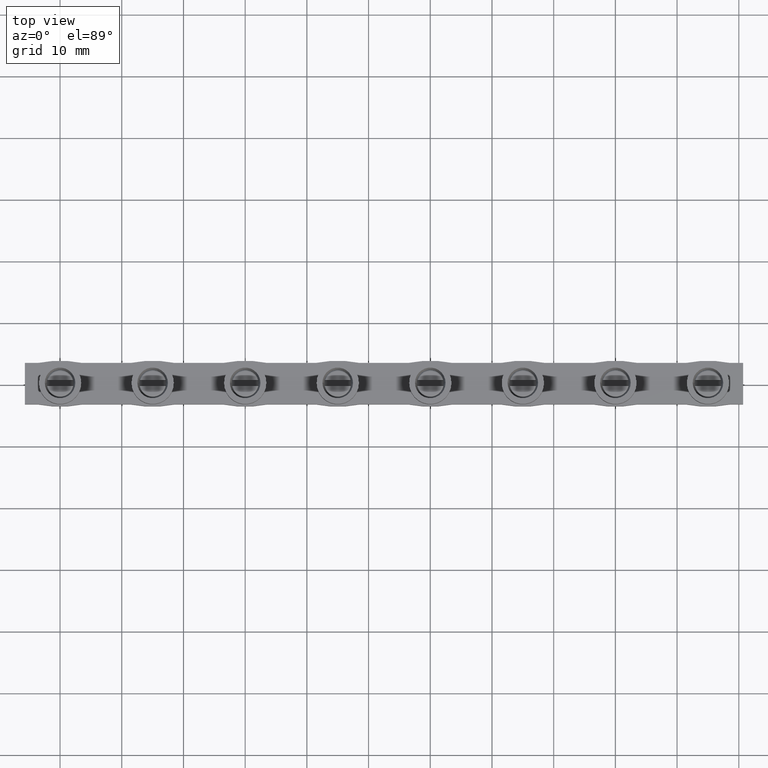
[diagram: clean part render]
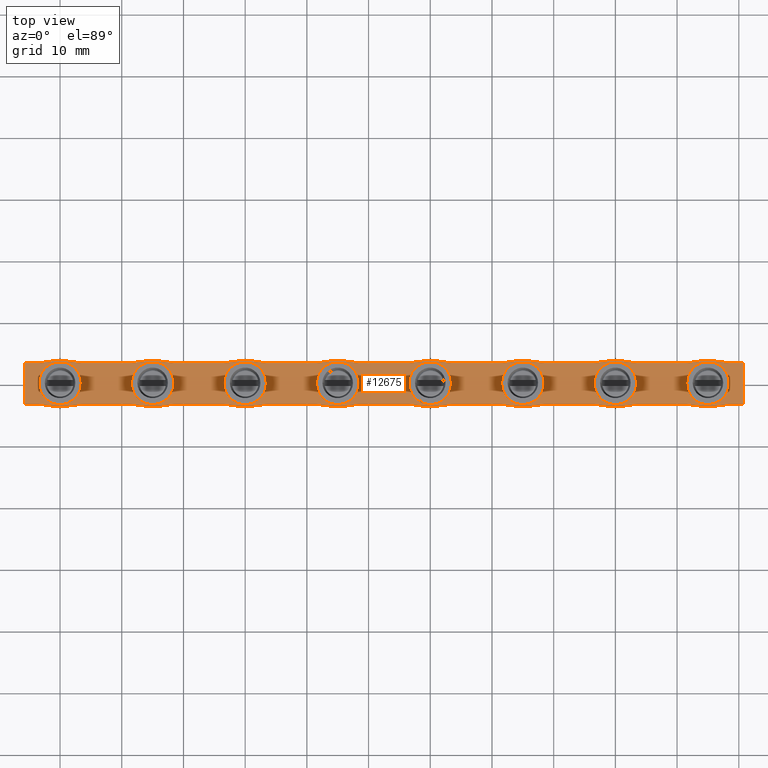
[diagram: same view with one face highlighted and labeled with its STEP entity id]
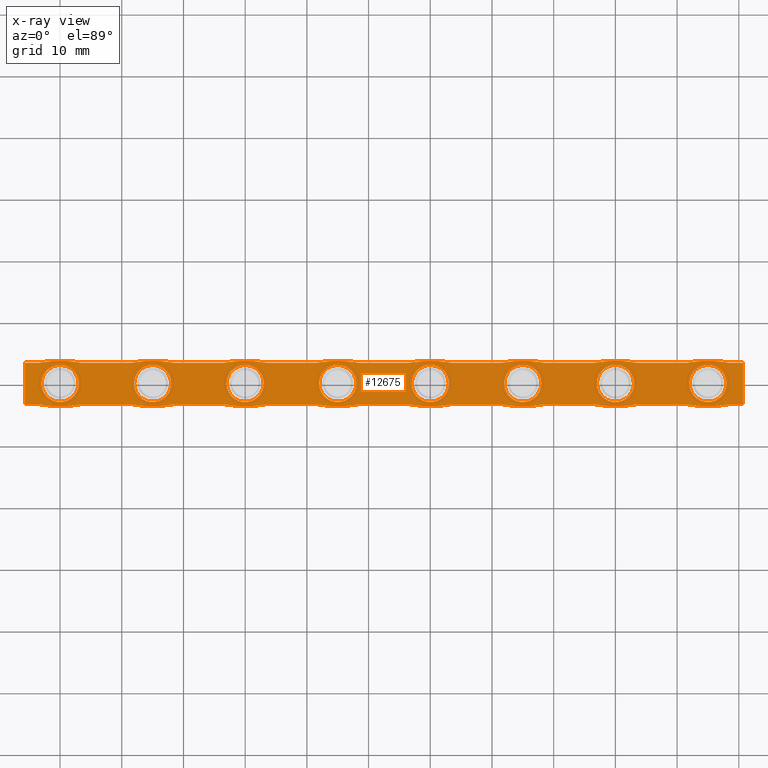
[diagram: x-ray of the same camera — body ghosted, the highlighted face saturated]
A machine part, top view. The second image highlights one B-rep face of the part: STEP entity #12675.
The next image is the same camera in x-ray: the body ghosted, the highlighted face saturated — about 0% of this face is hidden behind the body in this view.
In plain terms, the highlighted planar face has unit normal (0, 0, -1).
Its self-contained STEP definition (entity closure, byte-faithful):
#195 = EDGE_CURVE ( 'NONE', #2505, #2539, #10050, .T. ) ;
#201 = EDGE_CURVE ( 'NONE', #1992, #1972, #10030, .T. ) ;
#267 = EDGE_CURVE ( 'NONE', #1974, #2014, #10154, .T. ) ;
#313 = EDGE_CURVE ( 'NONE', #2031, #1994, #10218, .T. ) ;
#344 = EDGE_CURVE ( 'NONE', #1946, #2055, #10246, .T. ) ;
#427 = EDGE_CURVE ( 'NONE', #2116, #2133, #10355, .T. ) ;
#435 = EDGE_CURVE ( 'NONE', #2118, #2062, #10364, .T. ) ;
#466 = EDGE_CURVE ( 'NONE', #2190, #2192, #14548, .T. ) ;
#467 = EDGE_CURVE ( 'NONE', #2206, #2228, #14590, .T. ) ;
#468 = EDGE_CURVE ( 'NONE', #2228, #2190, #10419, .T. ) ;
#473 = EDGE_CURVE ( 'NONE', #2218, #2206, #10422, .T. ) ;
#474 = EDGE_CURVE ( 'NONE', #2197, #2210, #14605, .T. ) ;
#495 = EDGE_CURVE ( 'NONE', #2224, #2199, #10440, .T. ) ;
#497 = EDGE_CURVE ( 'NONE', #2207, #2237, #10465, .T. ) ;
#499 = EDGE_CURVE ( 'NONE', #2193, #2218, #14667, .T. ) ;
#506 = EDGE_CURVE ( 'NONE', #2110, #2152, #10479, .T. ) ;
#1422 = LINE ( 'NONE', #1448, #12172 ) ;
#1424 = DIRECTION ( 'NONE',  ( -1.000000000000000000, -1.245679091791856200E-016, -0.0000000000000000000 ) ) ;
#1426 = LINE ( 'NONE', #1456, #12141 ) ;
#1427 = DIRECTION ( 'NONE',  ( -0.0000000000000000000, -0.0000000000000000000, -1.000000000000000000 ) ) ;
#1429 = LINE ( 'NONE', #1449, #12126 ) ;
#1430 = LINE ( 'NONE', #1435, #12130 ) ;
#1431 = LINE ( 'NONE', #1451, #12158 ) ;
#1432 = DIRECTION ( 'NONE',  ( 1.000000000000000000, 1.245679091791855700E-016, -0.0000000000000000000 ) ) ;
#1435 = CARTESIAN_POINT ( 'NONE',  ( 58.85000000000163600, -3.349999999999673700, -0.9000000000000014700 ) ) ;
#1436 = CARTESIAN_POINT ( 'NONE',  ( 30.00000000000164500, 13.97500000000485100, -0.9000000000000014700 ) ) ;
#1438 = DIRECTION ( 'NONE',  ( 1.000000000000000000, 1.245679091791856200E-016, -0.0000000000000000000 ) ) ;
#1439 = DIRECTION ( 'NONE',  ( 4.822322090079283200E-017, -1.000000000000000000, 0.0000000000000000000 ) ) ;
#1443 = CARTESIAN_POINT ( 'NONE',  ( 30.00000000000165200, -13.97500000000472700, -0.9000000000000014700 ) ) ;
#1444 = DIRECTION ( 'NONE',  ( 1.000000000000000000, 2.944367993170586000E-016, 0.0000000000000000000 ) ) ;
#1445 = DIRECTION ( 'NONE',  ( -1.000000000000000000, -1.245679091791855700E-016, -0.0000000000000000000 ) ) ;
#1448 = CARTESIAN_POINT ( 'NONE',  ( 16.15000000000000900, -3.349999999999913900, -0.9000000000000014700 ) ) ;
#1449 = CARTESIAN_POINT ( 'NONE',  ( 73.85000000000164300, -3.349999999999613300, -0.9000000000000014700 ) ) ;
#1450 = DIRECTION ( 'NONE',  ( -1.000000000000000000, -1.245679091791855700E-016, -0.0000000000000000000 ) ) ;
#1451 = CARTESIAN_POINT ( 'NONE',  ( 31.15000000000001300, 3.350000000000084500, -0.9000000000000014700 ) ) ;
#1453 = CARTESIAN_POINT ( 'NONE',  ( 110.7000000000016500, -3.349999999999549300, -0.9000000000000014700 ) ) ;
#1455 = DIRECTION ( 'NONE',  ( -1.000000000000000000, -2.944367993170586500E-016, 0.0000000000000000000 ) ) ;
#1456 = CARTESIAN_POINT ( 'NONE',  ( 43.85000000000163600, 3.350000000000267000, -0.9000000000000014700 ) ) ;
#1462 = LINE ( 'NONE', #1453, #12146 ) ;
#1463 = CARTESIAN_POINT ( 'NONE',  ( 105.0000000000016500, 13.97500000000515300, -0.9000000000000014700 ) ) ;
#1464 = DIRECTION ( 'NONE',  ( -1.000000000000000000, -2.944367993170587500E-016, 0.0000000000000000000 ) ) ;
#1465 = DIRECTION ( 'NONE',  ( -0.0000000000000000000, -0.0000000000000000000, -1.000000000000000000 ) ) ;
#1466 = DIRECTION ( 'NONE',  ( -0.0000000000000000000, -0.0000000000000000000, -1.000000000000000000 ) ) ;
#1468 = LINE ( 'NONE', #1477, #12161 ) ;
#1473 = DIRECTION ( 'NONE',  ( 1.000000000000000000, 2.944367993170585000E-016, 0.0000000000000000000 ) ) ;
#1476 = CARTESIAN_POINT ( 'NONE',  ( 105.0000000000016500, -13.97500000000442500, -0.9000000000000014700 ) ) ;
#1477 = CARTESIAN_POINT ( 'NONE',  ( 46.15000000000001300, -3.349999999999856600, -0.9000000000000014700 ) ) ;
#1479 = CARTESIAN_POINT ( 'NONE',  ( 15.00000000000164500, 13.97500000000479000, -0.9000000000000014700 ) ) ;
#1481 = DIRECTION ( 'NONE',  ( -1.000000000000000000, -2.944367993170586500E-016, 0.0000000000000000000 ) ) ;
#1487 = DIRECTION ( 'NONE',  ( -0.0000000000000000000, -0.0000000000000000000, -1.000000000000000000 ) ) ;
#1490 = CARTESIAN_POINT ( 'NONE',  ( 45.00000000000164800, -13.97500000000466600, -0.9000000000000014700 ) ) ;
#1491 = DIRECTION ( 'NONE',  ( -0.0000000000000000000, -0.0000000000000000000, -1.000000000000000000 ) ) ;
#1499 = DIRECTION ( 'NONE',  ( 1.000000000000000000, 1.245679091791856200E-016, -0.0000000000000000000 ) ) ;
#1503 = DIRECTION ( 'NONE',  ( -0.0000000000000000000, -0.0000000000000000000, -1.000000000000000000 ) ) ;
#1507 = DIRECTION ( 'NONE',  ( 1.000000000000000000, 2.944367993170585000E-016, 0.0000000000000000000 ) ) ;
#1510 = DIRECTION ( 'NONE',  ( -1.000000000000000000, -1.245679091791856200E-016, -0.0000000000000000000 ) ) ;
#1515 = CARTESIAN_POINT ( 'NONE',  ( 31.15000000000001300, -3.349999999999917500, -0.9000000000000014700 ) ) ;
#1520 = DIRECTION ( 'NONE',  ( 1.000000000000000000, 1.245679091791855700E-016, -0.0000000000000000000 ) ) ;
#1521 = LINE ( 'NONE', #1541, #12133 ) ;
#1522 = DIRECTION ( 'NONE',  ( 1.000000000000000000, 1.245679091791856200E-016, -0.0000000000000000000 ) ) ;
#1523 = DIRECTION ( 'NONE',  ( 1.000000000000000000, 2.944367993170587500E-016, 0.0000000000000000000 ) ) ;
#1526 = LINE ( 'NONE', #1515, #12152 ) ;
#1528 = CARTESIAN_POINT ( 'NONE',  ( 13.85000000000164300, 3.350000000000145800, -0.9000000000000014700 ) ) ;
#1529 = CARTESIAN_POINT ( 'NONE',  ( 90.00000000000164800, -13.97500000000448300, -0.9000000000000014700 ) ) ;
#1535 = DIRECTION ( 'NONE',  ( 1.000000000000000000, 1.245679091791855700E-016, -0.0000000000000000000 ) ) ;
#1538 = LINE ( 'NONE', #1544, #12119 ) ;
#1541 = CARTESIAN_POINT ( 'NONE',  ( 16.15000000000000900, 3.350000000000087100, -0.9000000000000014700 ) ) ;
#1543 = LINE ( 'NONE', #1547, #12128 ) ;
#1544 = CARTESIAN_POINT ( 'NONE',  ( 46.15000000000001300, 3.350000000000145300, -0.9000000000000014700 ) ) ;
#1545 = DIRECTION ( 'NONE',  ( -0.0000000000000000000, -0.0000000000000000000, -1.000000000000000000 ) ) ;
#1547 = CARTESIAN_POINT ( 'NONE',  ( 28.85000000000164300, 3.350000000000206100, -0.9000000000000014700 ) ) ;
#1551 = DIRECTION ( 'NONE',  ( -1.000000000000000000, -1.245679091791856200E-016, -0.0000000000000000000 ) ) ;
#1552 = LINE ( 'NONE', #1528, #12151 ) ;
#1556 = CARTESIAN_POINT ( 'NONE',  ( 15.00000000000165000, 1.868518637687989600E-015, -0.9000000000000014700 ) ) ;
#1564 = DIRECTION ( 'NONE',  ( 0.0000000000000000000, 0.0000000000000000000, -1.000000000000000000 ) ) ;
#1580 = DIRECTION ( 'NONE',  ( 1.000000000000000000, 2.491358183583712400E-016, 0.0000000000000000000 ) ) ;
#1604 = DIRECTION ( 'NONE',  ( 1.000000000000000000, 2.491358183583654200E-016, 0.0000000000000000000 ) ) ;
#1619 = DIRECTION ( 'NONE',  ( 0.0000000000000000000, 0.0000000000000000000, -1.000000000000000000 ) ) ;
#1637 = CARTESIAN_POINT ( 'NONE',  ( 90.00000000000164800, 3.046974012975282300E-013, -0.9000000000000014700 ) ) ;
#1664 = DIRECTION ( 'NONE',  ( 0.0000000000000000000, 0.0000000000000000000, -1.000000000000000000 ) ) ;
#1677 = CARTESIAN_POINT ( 'NONE',  ( 45.00000000000164800, 1.230000717016241000E-013, -0.9000000000000014700 ) ) ;
#1678 = DIRECTION ( 'NONE',  ( 1.000000000000000000, 2.491358183583736600E-016, 0.0000000000000000000 ) ) ;
#1710 = DIRECTION ( 'NONE',  ( 1.000000000000000000, 2.491358183583695200E-016, 0.0000000000000000000 ) ) ;
#1720 = CARTESIAN_POINT ( 'NONE',  ( 30.00000000000165200, 6.243429516965604400E-014, -0.9000000000000014700 ) ) ;
#1730 = DIRECTION ( 'NONE',  ( 0.0000000000000000000, 0.0000000000000000000, -1.000000000000000000 ) ) ;
#1772 = DIRECTION ( 'NONE',  ( 1.000000000000000000, 2.491358183583654200E-016, 0.0000000000000000000 ) ) ;
#1781 = CARTESIAN_POINT ( 'NONE',  ( 105.0000000000016500, 3.652631778294963100E-013, -0.9000000000000014700 ) ) ;
#1797 = DIRECTION ( 'NONE',  ( 0.0000000000000000000, 0.0000000000000000000, -1.000000000000000000 ) ) ;
#1946 = VERTEX_POINT ( 'NONE', #8403 ) ;
#1972 = VERTEX_POINT ( 'NONE', #8482 ) ;
#1974 = VERTEX_POINT ( 'NONE', #8457 ) ;
#1992 = VERTEX_POINT ( 'NONE', #8442 ) ;
#1994 = VERTEX_POINT ( 'NONE', #8443 ) ;
#2014 = VERTEX_POINT ( 'NONE', #8508 ) ;
#2031 = VERTEX_POINT ( 'NONE', #8515 ) ;
#2055 = VERTEX_POINT ( 'NONE', #8516 ) ;
#2062 = VERTEX_POINT ( 'NONE', #8519 ) ;
#2110 = VERTEX_POINT ( 'NONE', #8586 ) ;
#2116 = VERTEX_POINT ( 'NONE', #8593 ) ;
#2118 = VERTEX_POINT ( 'NONE', #8597 ) ;
#2121 = VERTEX_POINT ( 'NONE', #8599 ) ;
#2133 = VERTEX_POINT ( 'NONE', #8650 ) ;
#2152 = VERTEX_POINT ( 'NONE', #8651 ) ;
#2188 = VERTEX_POINT ( 'NONE', #8702 ) ;
#2190 = VERTEX_POINT ( 'NONE', #8685 ) ;
#2192 = VERTEX_POINT ( 'NONE', #8714 ) ;
#2193 = VERTEX_POINT ( 'NONE', #8709 ) ;
#2194 = VERTEX_POINT ( 'NONE', #8700 ) ;
#2196 = VERTEX_POINT ( 'NONE', #8678 ) ;
#2197 = VERTEX_POINT ( 'NONE', #8710 ) ;
#2198 = VERTEX_POINT ( 'NONE', #8711 ) ;
#2199 = VERTEX_POINT ( 'NONE', #8669 ) ;
#2200 = VERTEX_POINT ( 'NONE', #8696 ) ;
#2204 = VERTEX_POINT ( 'NONE', #8682 ) ;
#2206 = VERTEX_POINT ( 'NONE', #8686 ) ;
#2207 = VERTEX_POINT ( 'NONE', #8687 ) ;
#2208 = VERTEX_POINT ( 'NONE', #8701 ) ;
#2210 = VERTEX_POINT ( 'NONE', #8672 ) ;
#2212 = VERTEX_POINT ( 'NONE', #8673 ) ;
#2215 = VERTEX_POINT ( 'NONE', #8703 ) ;
#2218 = VERTEX_POINT ( 'NONE', #8704 ) ;
#2220 = VERTEX_POINT ( 'NONE', #8716 ) ;
#2221 = VERTEX_POINT ( 'NONE', #8707 ) ;
#2222 = VERTEX_POINT ( 'NONE', #8663 ) ;
#2223 = VERTEX_POINT ( 'NONE', #8692 ) ;
#2224 = VERTEX_POINT ( 'NONE', #8664 ) ;
#2225 = VERTEX_POINT ( 'NONE', #8693 ) ;
#2226 = VERTEX_POINT ( 'NONE', #8694 ) ;
#2227 = VERTEX_POINT ( 'NONE', #8755 ) ;
#2228 = VERTEX_POINT ( 'NONE', #8761 ) ;
#2230 = VERTEX_POINT ( 'NONE', #8741 ) ;
#2232 = VERTEX_POINT ( 'NONE', #8726 ) ;
#2235 = VERTEX_POINT ( 'NONE', #8782 ) ;
#2237 = VERTEX_POINT ( 'NONE', #8771 ) ;
#2239 = VERTEX_POINT ( 'NONE', #8747 ) ;
#2240 = VERTEX_POINT ( 'NONE', #8739 ) ;
#2242 = VERTEX_POINT ( 'NONE', #8756 ) ;
#2243 = VERTEX_POINT ( 'NONE', #8732 ) ;
#2505 = VERTEX_POINT ( 'NONE', #9007 ) ;
#2539 = VERTEX_POINT ( 'NONE', #9047 ) ;
#2747 = EDGE_LOOP ( 'NONE', ( #4884, #4940 ) ) ;
#2754 = EDGE_LOOP ( 'NONE', ( #4906, #4868 ) ) ;
#2755 = EDGE_LOOP ( 'NONE', ( #4818, #4891, #4898, #4824, #4912, #4886, #4845, #4806, #4903, #4802, #4814, #4889, #4869, #4825, #4874, #4828, #4855, #4870, #4902, #4827, #4899, #4935, #4925, #4851, #4950, #4941, #4961, #4976, #4964, #4885, #4948, #4966, #4962, #4967, #4892, #4878 ) ) ;
#2758 = EDGE_LOOP ( 'NONE', ( #4881, #4854 ) ) ;
#2768 = EDGE_LOOP ( 'NONE', ( #4850, #4953 ) ) ;
#2769 = EDGE_LOOP ( 'NONE', ( #4856, #4859 ) ) ;
#2783 = EDGE_LOOP ( 'NONE', ( #4957, #4928 ) ) ;
#2796 = EDGE_LOOP ( 'NONE', ( #4904, #4861 ) ) ;
#2798 = EDGE_LOOP ( 'NONE', ( #4946, #4853 ) ) ;
#3959 = CARTESIAN_POINT ( 'NONE',  ( 90.00000000000164800, 3.046974012975282300E-013, -0.9000000000000014700 ) ) ;
#3964 = DIRECTION ( 'NONE',  ( 0.0000000000000000000, 0.0000000000000000000, -1.000000000000000000 ) ) ;
#3972 = DIRECTION ( 'NONE',  ( 1.000000000000000000, 2.491358183583654200E-016, 0.0000000000000000000 ) ) ;
#3981 = DIRECTION ( 'NONE',  ( 1.000000000000000000, 2.491358183583654200E-016, 0.0000000000000000000 ) ) ;
#3987 = CARTESIAN_POINT ( 'NONE',  ( 105.0000000000016500, 3.652631778294963100E-013, -0.9000000000000014700 ) ) ;
#3989 = DIRECTION ( 'NONE',  ( 0.0000000000000000000, 0.0000000000000000000, -1.000000000000000000 ) ) ;
#4124 = DIRECTION ( 'NONE',  ( 0.0000000000000000000, 0.0000000000000000000, -1.000000000000000000 ) ) ;
#4166 = CARTESIAN_POINT ( 'NONE',  ( 60.00000000000164800, 1.835658482335921500E-013, -0.9000000000000014700 ) ) ;
#4802 = ORIENTED_EDGE ( 'NONE', *, *, #12973, .F. ) ;
#4806 = ORIENTED_EDGE ( 'NONE', *, *, #12959, .F. ) ;
#4814 = ORIENTED_EDGE ( 'NONE', *, *, #12967, .F. ) ;
#4818 = ORIENTED_EDGE ( 'NONE', *, *, #12974, .F. ) ;
#4824 = ORIENTED_EDGE ( 'NONE', *, *, #474, .F. ) ;
#4825 = ORIENTED_EDGE ( 'NONE', *, *, #13013, .F. ) ;
#4827 = ORIENTED_EDGE ( 'NONE', *, *, #12991, .T. ) ;
#4828 = ORIENTED_EDGE ( 'NONE', *, *, #13019, .F. ) ;
#4845 = ORIENTED_EDGE ( 'NONE', *, *, #13004, .F. ) ;
#4850 = ORIENTED_EDGE ( 'NONE', *, *, #427, .T. ) ;
#4851 = ORIENTED_EDGE ( 'NONE', *, *, #12987, .T. ) ;
#4853 = ORIENTED_EDGE ( 'NONE', *, *, #13050, .T. ) ;
#4854 = ORIENTED_EDGE ( 'NONE', *, *, #435, .F. ) ;
#4855 = ORIENTED_EDGE ( 'NONE', *, *, #12990, .F. ) ;
#4856 = ORIENTED_EDGE ( 'NONE', *, *, #267, .T. ) ;
#4859 = ORIENTED_EDGE ( 'NONE', *, *, #12979, .T. ) ;
#4861 = ORIENTED_EDGE ( 'NONE', *, *, #13060, .T. ) ;
#4868 = ORIENTED_EDGE ( 'NONE', *, *, #12982, .T. ) ;
#4869 = ORIENTED_EDGE ( 'NONE', *, *, #12958, .F. ) ;
#4870 = ORIENTED_EDGE ( 'NONE', *, *, #13014, .T. ) ;
#4874 = ORIENTED_EDGE ( 'NONE', *, *, #13007, .F. ) ;
#4878 = ORIENTED_EDGE ( 'NONE', *, *, #12986, .F. ) ;
#4881 = ORIENTED_EDGE ( 'NONE', *, *, #12960, .F. ) ;
#4884 = ORIENTED_EDGE ( 'NONE', *, *, #201, .T. ) ;
#4885 = ORIENTED_EDGE ( 'NONE', *, *, #466, .F. ) ;
#4886 = ORIENTED_EDGE ( 'NONE', *, *, #12977, .F. ) ;
#4889 = ORIENTED_EDGE ( 'NONE', *, *, #12992, .F. ) ;
#4891 = ORIENTED_EDGE ( 'NONE', *, *, #12988, .F. ) ;
#4892 = ORIENTED_EDGE ( 'NONE', *, *, #12975, .F. ) ;
#4898 = ORIENTED_EDGE ( 'NONE', *, *, #12994, .F. ) ;
#4899 = ORIENTED_EDGE ( 'NONE', *, *, #495, .T. ) ;
#4902 = ORIENTED_EDGE ( 'NONE', *, *, #12969, .F. ) ;
#4903 = ORIENTED_EDGE ( 'NONE', *, *, #13018, .F. ) ;
#4904 = ORIENTED_EDGE ( 'NONE', *, *, #195, .T. ) ;
#4906 = ORIENTED_EDGE ( 'NONE', *, *, #344, .T. ) ;
#4912 = ORIENTED_EDGE ( 'NONE', *, *, #12995, .F. ) ;
#4925 = ORIENTED_EDGE ( 'NONE', *, *, #12962, .T. ) ;
#4928 = ORIENTED_EDGE ( 'NONE', *, *, #13031, .T. ) ;
#4935 = ORIENTED_EDGE ( 'NONE', *, *, #13012, .T. ) ;
#4940 = ORIENTED_EDGE ( 'NONE', *, *, #13045, .T. ) ;
#4941 = ORIENTED_EDGE ( 'NONE', *, *, #13015, .T. ) ;
#4946 = ORIENTED_EDGE ( 'NONE', *, *, #313, .T. ) ;
#4948 = ORIENTED_EDGE ( 'NONE', *, *, #468, .F. ) ;
#4950 = ORIENTED_EDGE ( 'NONE', *, *, #497, .T. ) ;
#4953 = ORIENTED_EDGE ( 'NONE', *, *, #13056, .T. ) ;
#4957 = ORIENTED_EDGE ( 'NONE', *, *, #506, .T. ) ;
#4961 = ORIENTED_EDGE ( 'NONE', *, *, #13006, .F. ) ;
#4962 = ORIENTED_EDGE ( 'NONE', *, *, #473, .F. ) ;
#4964 = ORIENTED_EDGE ( 'NONE', *, *, #12989, .F. ) ;
#4966 = ORIENTED_EDGE ( 'NONE', *, *, #467, .F. ) ;
#4967 = ORIENTED_EDGE ( 'NONE', *, *, #499, .F. ) ;
#4976 = ORIENTED_EDGE ( 'NONE', *, *, #12999, .T. ) ;
#7909 = FACE_BOUND ( 'NONE', #2769, .T. ) ;
#7917 = FACE_BOUND ( 'NONE', #2754, .T. ) ;
#7922 = DIRECTION ( 'NONE',  ( -1.000000000000000000, 0.0000000000000000000, -0.0000000000000000000 ) ) ;
#7924 = CARTESIAN_POINT ( 'NONE',  ( -47.85000000000001600, -3.349999999999866400, -0.9000000000000014700 ) ) ;
#7936 = PLANE ( 'NONE',  #11831 ) ;
#7946 = FACE_BOUND ( 'NONE', #2758, .T. ) ;
#7949 = FACE_OUTER_BOUND ( 'NONE', #2755, .T. ) ;
#7950 = FACE_BOUND ( 'NONE', #2768, .T. ) ;
#7951 = FACE_BOUND ( 'NONE', #2747, .T. ) ;
#7952 = FACE_BOUND ( 'NONE', #2783, .T. ) ;
#7953 = FACE_BOUND ( 'NONE', #2796, .T. ) ;
#7954 = FACE_BOUND ( 'NONE', #2798, .T. ) ;
#7955 = DIRECTION ( 'NONE',  ( 0.0000000000000000000, 0.0000000000000000000, -1.000000000000000000 ) ) ;
#8403 = CARTESIAN_POINT ( 'NONE',  ( 63.00000000000164800, 1.843132556886672700E-013, -0.9000000000000014700 ) ) ;
#8442 = CARTESIAN_POINT ( 'NONE',  ( 93.00000000000164800, 3.054448087526033500E-013, -0.9000000000000014700 ) ) ;
#8443 = CARTESIAN_POINT ( 'NONE',  ( 42.00000000000164800, 1.218852702068047800E-013, -0.9000000000000014700 ) ) ;
#8457 = CARTESIAN_POINT ( 'NONE',  ( 78.00000000000164800, 2.448790322206352700E-013, -0.9000000000000014700 ) ) ;
#8482 = CARTESIAN_POINT ( 'NONE',  ( 87.00000000000164800, 3.035825998027089300E-013, -0.9000000000000014700 ) ) ;
#8508 = CARTESIAN_POINT ( 'NONE',  ( 72.00000000000164800, 2.430168232707408600E-013, -0.9000000000000014700 ) ) ;
#8515 = CARTESIAN_POINT ( 'NONE',  ( 48.00000000000165600, 1.237474791566992100E-013, -0.9000000000000014700 ) ) ;
#8516 = CARTESIAN_POINT ( 'NONE',  ( 57.00000000000164800, 1.824510467387728300E-013, -0.9000000000000014700 ) ) ;
#8519 = CARTESIAN_POINT ( 'NONE',  ( -2.999999999999999100, 0.0000000000000000000, -0.9000000000000014700 ) ) ;
#8586 = CARTESIAN_POINT ( 'NONE',  ( 18.00000000000164800, 2.615926092763103100E-015, -0.9000000000000014700 ) ) ;
#8593 = CARTESIAN_POINT ( 'NONE',  ( 33.00000000000165600, 6.318170262473114700E-014, -0.9000000000000014700 ) ) ;
#8597 = CARTESIAN_POINT ( 'NONE',  ( 2.999999999999999100, 3.673940397442058900E-016, -0.9000000000000014700 ) ) ;
#8599 = CARTESIAN_POINT ( 'NONE',  ( -5.699999999999996600, -3.349999999999916600, -0.9000000000000014700 ) ) ;
#8650 = CARTESIAN_POINT ( 'NONE',  ( 27.00000000000165200, 6.131949367483672300E-014, -0.9000000000000014700 ) ) ;
#8651 = CARTESIAN_POINT ( 'NONE',  ( 12.00000000000165200, 7.537171428686701700E-016, -0.9000000000000014700 ) ) ;
#8663 = CARTESIAN_POINT ( 'NONE',  ( 11.50000000000156100, 3.350000000000081400, -0.9000000000000014700 ) ) ;
#8664 = CARTESIAN_POINT ( 'NONE',  ( 3.500000000000087900, 3.350000000000080500, -0.9000000000000014700 ) ) ;
#8669 = CARTESIAN_POINT ( 'NONE',  ( -3.500000000000049700, 3.350000000000085800, -0.9000000000000014700 ) ) ;
#8672 = CARTESIAN_POINT ( 'NONE',  ( 108.5000000000036800, -3.349999999999549300, -0.9000000000000014700 ) ) ;
#8673 = CARTESIAN_POINT ( 'NONE',  ( 48.50000000000169100, 3.350000000000209700, -0.9000000000000014700 ) ) ;
#8678 = CARTESIAN_POINT ( 'NONE',  ( 93.50000000000368100, -3.349999999999610200, -0.9000000000000014700 ) ) ;
#8682 = CARTESIAN_POINT ( 'NONE',  ( 93.50000000000169100, 3.350000000000391300, -0.9000000000000014700 ) ) ;
#8685 = CARTESIAN_POINT ( 'NONE',  ( 41.49999999999991500, -3.349999999999821600, -0.9000000000000014700 ) ) ;
#8686 = CARTESIAN_POINT ( 'NONE',  ( 56.49999999999991500, -3.349999999999760700, -0.9000000000000014700 ) ) ;
#8687 = CARTESIAN_POINT ( 'NONE',  ( -3.500000000002025000, -3.349999999999915700, -0.9000000000000014700 ) ) ;
#8692 = CARTESIAN_POINT ( 'NONE',  ( 63.50000000000169100, 3.350000000000270100, -0.9000000000000014700 ) ) ;
#8693 = CARTESIAN_POINT ( 'NONE',  ( 110.7000000000016500, 3.350000000000451300, -0.9000000000000014700 ) ) ;
#8694 = CARTESIAN_POINT ( 'NONE',  ( 56.50000000000156300, 3.350000000000263000, -0.9000000000000014700 ) ) ;
#8696 = CARTESIAN_POINT ( 'NONE',  ( 101.4999999999999100, -3.349999999999579100, -0.9000000000000014700 ) ) ;
#8700 = CARTESIAN_POINT ( 'NONE',  ( 78.50000000000368100, -3.349999999999670600, -0.9000000000000014700 ) ) ;
#8701 = CARTESIAN_POINT ( 'NONE',  ( 18.50000000000169500, -3.349999999999860200, -0.9000000000000014700 ) ) ;
#8702 = CARTESIAN_POINT ( 'NONE',  ( 26.50000000000156000, 3.350000000000141800, -0.9000000000000014700 ) ) ;
#8703 = CARTESIAN_POINT ( 'NONE',  ( -5.700000000000000200, 3.350000000000084500, -0.9000000000000014700 ) ) ;
#8704 = CARTESIAN_POINT ( 'NONE',  ( 63.50000000000368100, -3.349999999999731400, -0.9000000000000014700 ) ) ;
#8707 = CARTESIAN_POINT ( 'NONE',  ( 11.49999999999990900, -3.349999999999942400, -0.9000000000000014700 ) ) ;
#8709 = CARTESIAN_POINT ( 'NONE',  ( 71.49999999999991500, -3.349999999999699900, -0.9000000000000014700 ) ) ;
#8710 = CARTESIAN_POINT ( 'NONE',  ( 110.7000000000016500, -3.349999999999549800, -0.9000000000000014700 ) ) ;
#8711 = CARTESIAN_POINT ( 'NONE',  ( 33.50000000000169800, 3.350000000000149300, -0.9000000000000014700 ) ) ;
#8714 = CARTESIAN_POINT ( 'NONE',  ( 33.50000000000368100, -3.349999999999852200, -0.9000000000000014700 ) ) ;
#8716 = CARTESIAN_POINT ( 'NONE',  ( 26.49999999999990800, -3.349999999999881500, -0.9000000000000014700 ) ) ;
#8726 = CARTESIAN_POINT ( 'NONE',  ( 108.5000000000016900, 3.350000000000452200, -0.9000000000000014700 ) ) ;
#8732 = CARTESIAN_POINT ( 'NONE',  ( 86.50000000000156300, 3.350000000000383800, -0.9000000000000014700 ) ) ;
#8739 = CARTESIAN_POINT ( 'NONE',  ( 41.50000000000156300, 3.350000000000202100, -0.9000000000000014700 ) ) ;
#8741 = CARTESIAN_POINT ( 'NONE',  ( 18.50000000000169500, 3.350000000000141800, -0.9000000000000014700 ) ) ;
#8747 = CARTESIAN_POINT ( 'NONE',  ( 78.50000000000169100, 3.350000000000330900, -0.9000000000000014700 ) ) ;
#8755 = CARTESIAN_POINT ( 'NONE',  ( 71.50000000000156300, 3.350000000000323800, -0.9000000000000014700 ) ) ;
#8756 = CARTESIAN_POINT ( 'NONE',  ( 101.5000000000015600, 3.350000000000444600, -0.9000000000000014700 ) ) ;
#8761 = CARTESIAN_POINT ( 'NONE',  ( 48.50000000000368100, -3.349999999999791800, -0.9000000000000014700 ) ) ;
#8771 = CARTESIAN_POINT ( 'NONE',  ( 3.500000000001742600, -3.349999999999943200, -0.9000000000000014700 ) ) ;
#8782 = CARTESIAN_POINT ( 'NONE',  ( 86.49999999999991500, -3.349999999999639900, -0.9000000000000014700 ) ) ;
#9007 = CARTESIAN_POINT ( 'NONE',  ( 108.0000000000016500, 3.660105852845714200E-013, -0.9000000000000014700 ) ) ;
#9047 = CARTESIAN_POINT ( 'NONE',  ( 102.0000000000016500, 3.641483763346769600E-013, -0.9000000000000014700 ) ) ;
#9886 = CARTESIAN_POINT ( 'NONE',  ( 58.85000000000163600, 3.350000000000327400, -0.9000000000000014700 ) ) ;
#9889 = DIRECTION ( 'NONE',  ( -0.0000000000000000000, -0.0000000000000000000, -1.000000000000000000 ) ) ;
#9890 = DIRECTION ( 'NONE',  ( 1.000000000000000000, 2.944367993170586000E-016, 0.0000000000000000000 ) ) ;
#9891 = LINE ( 'NONE', #9886, #12108 ) ;
#9893 = CARTESIAN_POINT ( 'NONE',  ( 90.00000000000164800, 13.97500000000509400, -0.9000000000000014700 ) ) ;
#9894 = DIRECTION ( 'NONE',  ( -0.0000000000000000000, -0.0000000000000000000, -1.000000000000000000 ) ) ;
#9897 = CARTESIAN_POINT ( 'NONE',  ( 88.85000000000164300, 3.350000000000448600, -0.9000000000000014700 ) ) ;
#9899 = DIRECTION ( 'NONE',  ( -1.000000000000000000, -2.944367993170587500E-016, 0.0000000000000000000 ) ) ;
#9906 = LINE ( 'NONE', #9897, #12061 ) ;
#9910 = DIRECTION ( 'NONE',  ( -0.0000000000000000000, -0.0000000000000000000, -1.000000000000000000 ) ) ;
#9918 = CARTESIAN_POINT ( 'NONE',  ( 75.00000000000164800, 13.97500000000503400, -0.9000000000000014700 ) ) ;
#9924 = DIRECTION ( 'NONE',  ( 1.000000000000000000, 1.245679091791855700E-016, -0.0000000000000000000 ) ) ;
#9925 = DIRECTION ( 'NONE',  ( 1.000000000000000000, 1.245679091791855700E-016, -0.0000000000000000000 ) ) ;
#9926 = DIRECTION ( 'NONE',  ( -1.000000000000000000, -2.944367993170587500E-016, 0.0000000000000000000 ) ) ;
#9931 = CARTESIAN_POINT ( 'NONE',  ( 15.00000000000164800, -13.97500000000478700, -0.9000000000000014700 ) ) ;
#9935 = CARTESIAN_POINT ( 'NONE',  ( 75.00000000000164800, -13.97500000000454500, -0.9000000000000014700 ) ) ;
#9936 = DIRECTION ( 'NONE',  ( 1.000000000000000000, 2.944367993170585000E-016, 0.0000000000000000000 ) ) ;
#9939 = DIRECTION ( 'NONE',  ( -0.0000000000000000000, -0.0000000000000000000, -1.000000000000000000 ) ) ;
#10007 = AXIS2_PLACEMENT_3D ( 'NONE', #3987, #3964, #3972 ) ;
#10008 = AXIS2_PLACEMENT_3D ( 'NONE', #3959, #3989, #3981 ) ;
#10030 = CIRCLE ( 'NONE', #10008, 3.000000000000002700 ) ;
#10050 = CIRCLE ( 'NONE', #10007, 3.000000000000002700 ) ;
#10154 = CIRCLE ( 'NONE', #10167, 3.000000000000002700 ) ;
#10167 = AXIS2_PLACEMENT_3D ( 'NONE', #13963, #13951, #13929 ) ;
#10207 = AXIS2_PLACEMENT_3D ( 'NONE', #14096, #14105, #14130 ) ;
#10218 = CIRCLE ( 'NONE', #10207, 3.000000000000002700 ) ;
#10231 = AXIS2_PLACEMENT_3D ( 'NONE', #14211, #14187, #14206 ) ;
#10246 = CIRCLE ( 'NONE', #10231, 3.000000000000002700 ) ;
#10355 = CIRCLE ( 'NONE', #10357, 3.000000000000002700 ) ;
#10357 = AXIS2_PLACEMENT_3D ( 'NONE', #14457, #14467, #14455 ) ;
#10364 = CIRCLE ( 'NONE', #10372, 2.999999999999999100 ) ;
#10372 = AXIS2_PLACEMENT_3D ( 'NONE', #14474, #14475, #14476 ) ;
#10417 = VECTOR ( 'NONE', #14603, 1000.000000000000000 ) ;
#10419 = CIRCLE ( 'NONE', #10420, 17.67500000000478600 ) ;
#10420 = AXIS2_PLACEMENT_3D ( 'NONE', #14585, #14601, #14606 ) ;
#10422 = CIRCLE ( 'NONE', #10430, 17.67500000000479000 ) ;
#10423 = VECTOR ( 'NONE', #14567, 1000.000000000000000 ) ;
#10426 = VECTOR ( 'NONE', #14591, 1000.000000000000000 ) ;
#10430 = AXIS2_PLACEMENT_3D ( 'NONE', #14579, #14582, #14604 ) ;
#10440 = CIRCLE ( 'NONE', #10441, 17.67500000000479000 ) ;
#10441 = AXIS2_PLACEMENT_3D ( 'NONE', #14657, #14658, #14674 ) ;
#10465 = CIRCLE ( 'NONE', #10481, 17.67500000000478600 ) ;
#10470 = VECTOR ( 'NONE', #14659, 1000.000000000000000 ) ;
#10475 = AXIS2_PLACEMENT_3D ( 'NONE', #14423, #14442, #14514 ) ;
#10479 = CIRCLE ( 'NONE', #10475, 2.999999999999999100 ) ;
#10481 = AXIS2_PLACEMENT_3D ( 'NONE', #14663, #14683, #14688 ) ;
#11831 = AXIS2_PLACEMENT_3D ( 'NONE', #7924, #7955, #7922 ) ;
#12060 = AXIS2_PLACEMENT_3D ( 'NONE', #9893, #9894, #9899 ) ;
#12061 = VECTOR ( 'NONE', #9924, 1000.000000000000000 ) ;
#12063 = AXIS2_PLACEMENT_3D ( 'NONE', #13464, #13465, #13491 ) ;
#12072 = AXIS2_PLACEMENT_3D ( 'NONE', #9931, #9889, #9890 ) ;
#12074 = CIRCLE ( 'NONE', #12097, 17.67500000000478300 ) ;
#12077 = CIRCLE ( 'NONE', #12116, 17.67500000000479700 ) ;
#12078 = VECTOR ( 'NONE', #13504, 1000.000000000000000 ) ;
#12085 = CIRCLE ( 'NONE', #12060, 17.67500000000478300 ) ;
#12092 = VECTOR ( 'NONE', #13475, 1000.000000000000000 ) ;
#12097 = AXIS2_PLACEMENT_3D ( 'NONE', #13462, #13480, #13503 ) ;
#12098 = CIRCLE ( 'NONE', #12063, 2.999999999999999100 ) ;
#12101 = CIRCLE ( 'NONE', #12072, 17.67500000000479000 ) ;
#12107 = CIRCLE ( 'NONE', #12109, 17.67500000000478300 ) ;
#12108 = VECTOR ( 'NONE', #9925, 1000.000000000000000 ) ;
#12109 = AXIS2_PLACEMENT_3D ( 'NONE', #9918, #9910, #9926 ) ;
#12116 = AXIS2_PLACEMENT_3D ( 'NONE', #9935, #9939, #9936 ) ;
#12119 = VECTOR ( 'NONE', #1510, 1000.000000000000000 ) ;
#12121 = CIRCLE ( 'NONE', #12160, 17.67500000000479700 ) ;
#12123 = CIRCLE ( 'NONE', #12125, 3.000000000000002700 ) ;
#12124 = CIRCLE ( 'NONE', #12145, 17.67500000000478300 ) ;
#12125 = AXIS2_PLACEMENT_3D ( 'NONE', #4166, #4124, #14709 ) ;
#12126 = VECTOR ( 'NONE', #1445, 1000.000000000000000 ) ;
#12127 = CIRCLE ( 'NONE', #12157, 3.000000000000002700 ) ;
#12128 = VECTOR ( 'NONE', #1535, 1000.000000000000000 ) ;
#12129 = AXIS2_PLACEMENT_3D ( 'NONE', #1479, #1503, #1481 ) ;
#12130 = VECTOR ( 'NONE', #1450, 1000.000000000000000 ) ;
#12132 = AXIS2_PLACEMENT_3D ( 'NONE', #1436, #1466, #1455 ) ;
#12133 = VECTOR ( 'NONE', #1551, 1000.000000000000000 ) ;
#12139 = CIRCLE ( 'NONE', #12168, 17.67500000000479700 ) ;
#12140 = CIRCLE ( 'NONE', #12132, 17.67500000000478600 ) ;
#12141 = VECTOR ( 'NONE', #1432, 1000.000000000000000 ) ;
#12143 = CIRCLE ( 'NONE', #12150, 17.67500000000478300 ) ;
#12145 = AXIS2_PLACEMENT_3D ( 'NONE', #1463, #1427, #1464 ) ;
#12146 = VECTOR ( 'NONE', #1439, 1000.000000000000000 ) ;
#12150 = AXIS2_PLACEMENT_3D ( 'NONE', #1529, #1545, #1523 ) ;
#12151 = VECTOR ( 'NONE', #1520, 1000.000000000000000 ) ;
#12152 = VECTOR ( 'NONE', #1522, 1000.000000000000000 ) ;
#12157 = AXIS2_PLACEMENT_3D ( 'NONE', #13242, #13244, #13248 ) ;
#12158 = VECTOR ( 'NONE', #1424, 1000.000000000000000 ) ;
#12160 = AXIS2_PLACEMENT_3D ( 'NONE', #1476, #1491, #1473 ) ;
#12161 = VECTOR ( 'NONE', #1499, 1000.000000000000000 ) ;
#12168 = AXIS2_PLACEMENT_3D ( 'NONE', #1490, #1487, #1507 ) ;
#12171 = AXIS2_PLACEMENT_3D ( 'NONE', #1443, #1465, #1444 ) ;
#12172 = VECTOR ( 'NONE', #1438, 1000.000000000000000 ) ;
#12173 = CIRCLE ( 'NONE', #12129, 17.67500000000478600 ) ;
#12175 = CIRCLE ( 'NONE', #12171, 17.67500000000479000 ) ;
#12186 = AXIS2_PLACEMENT_3D ( 'NONE', #1720, #1730, #1710 ) ;
#12189 = AXIS2_PLACEMENT_3D ( 'NONE', #1677, #1664, #1678 ) ;
#12191 = CIRCLE ( 'NONE', #12212, 3.000000000000002700 ) ;
#12194 = AXIS2_PLACEMENT_3D ( 'NONE', #1556, #1564, #1580 ) ;
#12199 = CIRCLE ( 'NONE', #12186, 3.000000000000002700 ) ;
#12212 = AXIS2_PLACEMENT_3D ( 'NONE', #1781, #1797, #1772 ) ;
#12214 = CIRCLE ( 'NONE', #12189, 3.000000000000002700 ) ;
#12219 = CIRCLE ( 'NONE', #12194, 2.999999999999999100 ) ;
#12223 = AXIS2_PLACEMENT_3D ( 'NONE', #1637, #1619, #1604 ) ;
#12226 = CIRCLE ( 'NONE', #12223, 3.000000000000002700 ) ;
#12675 = ADVANCED_FACE ( 'NONE', ( #7949, #7951, #7917, #7950, #7946, #7952, #7954, #7909, #7953 ), #7936, .F. ) ;
#12958 = EDGE_CURVE ( 'NONE', #2226, #2223, #12074, .T. ) ;
#12959 = EDGE_CURVE ( 'NONE', #2204, #2242, #13490, .T. ) ;
#12960 = EDGE_CURVE ( 'NONE', #2062, #2118, #12098, .T. ) ;
#12962 = EDGE_CURVE ( 'NONE', #2215, #2121, #13495, .T. ) ;
#12967 = EDGE_CURVE ( 'NONE', #2227, #2239, #12077, .T. ) ;
#12969 = EDGE_CURVE ( 'NONE', #2222, #2230, #12101, .T. ) ;
#12973 = EDGE_CURVE ( 'NONE', #2239, #2243, #9891, .T. ) ;
#12974 = EDGE_CURVE ( 'NONE', #2196, #2235, #12085, .T. ) ;
#12975 = EDGE_CURVE ( 'NONE', #2194, #2193, #12107, .T. ) ;
#12977 = EDGE_CURVE ( 'NONE', #2232, #2225, #9906, .T. ) ;
#12979 = EDGE_CURVE ( 'NONE', #2014, #1974, #12127, .T. ) ;
#12982 = EDGE_CURVE ( 'NONE', #2055, #1946, #12123, .T. ) ;
#12986 = EDGE_CURVE ( 'NONE', #2235, #2194, #1430, .T. ) ;
#12987 = EDGE_CURVE ( 'NONE', #2121, #2207, #1422, .T. ) ;
#12988 = EDGE_CURVE ( 'NONE', #2200, #2196, #1429, .T. ) ;
#12989 = EDGE_CURVE ( 'NONE', #2192, #2220, #12140, .T. ) ;
#12990 = EDGE_CURVE ( 'NONE', #2188, #2198, #12175, .T. ) ;
#12991 = EDGE_CURVE ( 'NONE', #2222, #2224, #1431, .T. ) ;
#12992 = EDGE_CURVE ( 'NONE', #2223, #2227, #1426, .T. ) ;
#12994 = EDGE_CURVE ( 'NONE', #2210, #2200, #12124, .T. ) ;
#12995 = EDGE_CURVE ( 'NONE', #2225, #2197, #1462, .T. ) ;
#12999 = EDGE_CURVE ( 'NONE', #2208, #2220, #1468, .T. ) ;
#13004 = EDGE_CURVE ( 'NONE', #2242, #2232, #12121, .T. ) ;
#13006 = EDGE_CURVE ( 'NONE', #2208, #2221, #12173, .T. ) ;
#13007 = EDGE_CURVE ( 'NONE', #2240, #2212, #12139, .T. ) ;
#13012 = EDGE_CURVE ( 'NONE', #2199, #2215, #1521, .T. ) ;
#13013 = EDGE_CURVE ( 'NONE', #2212, #2226, #1543, .T. ) ;
#13014 = EDGE_CURVE ( 'NONE', #2188, #2230, #1538, .T. ) ;
#13015 = EDGE_CURVE ( 'NONE', #2237, #2221, #1526, .T. ) ;
#13018 = EDGE_CURVE ( 'NONE', #2243, #2204, #12143, .T. ) ;
#13019 = EDGE_CURVE ( 'NONE', #2198, #2240, #1552, .T. ) ;
#13031 = EDGE_CURVE ( 'NONE', #2152, #2110, #12219, .T. ) ;
#13045 = EDGE_CURVE ( 'NONE', #1972, #1992, #12226, .T. ) ;
#13050 = EDGE_CURVE ( 'NONE', #1994, #2031, #12214, .T. ) ;
#13056 = EDGE_CURVE ( 'NONE', #2133, #2116, #12199, .T. ) ;
#13060 = EDGE_CURVE ( 'NONE', #2539, #2505, #12191, .T. ) ;
#13242 = CARTESIAN_POINT ( 'NONE',  ( 75.00000000000164800, 2.441316247655602000E-013, -0.9000000000000014700 ) ) ;
#13244 = DIRECTION ( 'NONE',  ( 0.0000000000000000000, 0.0000000000000000000, -1.000000000000000000 ) ) ;
#13248 = DIRECTION ( 'NONE',  ( 1.000000000000000000, 2.491358183583654200E-016, 0.0000000000000000000 ) ) ;
#13462 = CARTESIAN_POINT ( 'NONE',  ( 60.00000000000164800, -13.97500000000460600, -0.9000000000000014700 ) ) ;
#13464 = CARTESIAN_POINT ( 'NONE',  ( 0.0000000000000000000, 0.0000000000000000000, -0.9000000000000014700 ) ) ;
#13465 = DIRECTION ( 'NONE',  ( 0.0000000000000000000, 0.0000000000000000000, 1.000000000000000000 ) ) ;
#13475 = DIRECTION ( 'NONE',  ( 2.009125974575783600E-016, -1.000000000000000000, 0.0000000000000000000 ) ) ;
#13477 = CARTESIAN_POINT ( 'NONE',  ( -5.699999999999996600, -3.349999999999916200, -0.9000000000000014700 ) ) ;
#13480 = DIRECTION ( 'NONE',  ( -0.0000000000000000000, -0.0000000000000000000, -1.000000000000000000 ) ) ;
#13490 = LINE ( 'NONE', #13494, #12078 ) ;
#13491 = DIRECTION ( 'NONE',  ( -1.000000000000000000, 0.0000000000000000000, 0.0000000000000000000 ) ) ;
#13494 = CARTESIAN_POINT ( 'NONE',  ( 73.85000000000164300, 3.350000000000387800, -0.9000000000000014700 ) ) ;
#13495 = LINE ( 'NONE', #13477, #12092 ) ;
#13503 = DIRECTION ( 'NONE',  ( 1.000000000000000000, 2.944367993170587500E-016, 0.0000000000000000000 ) ) ;
#13504 = DIRECTION ( 'NONE',  ( 1.000000000000000000, 1.245679091791855700E-016, -0.0000000000000000000 ) ) ;
#13929 = DIRECTION ( 'NONE',  ( 1.000000000000000000, 2.491358183583654200E-016, 0.0000000000000000000 ) ) ;
#13951 = DIRECTION ( 'NONE',  ( 0.0000000000000000000, 0.0000000000000000000, -1.000000000000000000 ) ) ;
#13963 = CARTESIAN_POINT ( 'NONE',  ( 75.00000000000164800, 2.441316247655602000E-013, -0.9000000000000014700 ) ) ;
#14096 = CARTESIAN_POINT ( 'NONE',  ( 45.00000000000164800, 1.230000717016241000E-013, -0.9000000000000014700 ) ) ;
#14105 = DIRECTION ( 'NONE',  ( 0.0000000000000000000, 0.0000000000000000000, -1.000000000000000000 ) ) ;
#14130 = DIRECTION ( 'NONE',  ( 1.000000000000000000, 2.491358183583736600E-016, 0.0000000000000000000 ) ) ;
#14187 = DIRECTION ( 'NONE',  ( 0.0000000000000000000, 0.0000000000000000000, -1.000000000000000000 ) ) ;
#14206 = DIRECTION ( 'NONE',  ( 1.000000000000000000, 2.491358183583736600E-016, 0.0000000000000000000 ) ) ;
#14211 = CARTESIAN_POINT ( 'NONE',  ( 60.00000000000164800, 1.835658482335921500E-013, -0.9000000000000014700 ) ) ;
#14423 = CARTESIAN_POINT ( 'NONE',  ( 15.00000000000165000, 1.868518637687989600E-015, -0.9000000000000014700 ) ) ;
#14442 = DIRECTION ( 'NONE',  ( 0.0000000000000000000, 0.0000000000000000000, -1.000000000000000000 ) ) ;
#14455 = DIRECTION ( 'NONE',  ( 1.000000000000000000, 2.491358183583695200E-016, 0.0000000000000000000 ) ) ;
#14457 = CARTESIAN_POINT ( 'NONE',  ( 30.00000000000165200, 6.243429516965604400E-014, -0.9000000000000014700 ) ) ;
#14467 = DIRECTION ( 'NONE',  ( 0.0000000000000000000, 0.0000000000000000000, -1.000000000000000000 ) ) ;
#14474 = CARTESIAN_POINT ( 'NONE',  ( 0.0000000000000000000, 0.0000000000000000000, -0.9000000000000014700 ) ) ;
#14475 = DIRECTION ( 'NONE',  ( 0.0000000000000000000, 0.0000000000000000000, 1.000000000000000000 ) ) ;
#14476 = DIRECTION ( 'NONE',  ( -1.000000000000000000, 0.0000000000000000000, 0.0000000000000000000 ) ) ;
#14514 = DIRECTION ( 'NONE',  ( 1.000000000000000000, 2.491358183583712400E-016, 0.0000000000000000000 ) ) ;
#14527 = CARTESIAN_POINT ( 'NONE',  ( 13.85000000000164300, -3.349999999999855300, -0.9000000000000014700 ) ) ;
#14548 = LINE ( 'NONE', #14527, #10417 ) ;
#14567 = DIRECTION ( 'NONE',  ( -1.000000000000000000, -1.245679091791855700E-016, -0.0000000000000000000 ) ) ;
#14578 = CARTESIAN_POINT ( 'NONE',  ( 28.85000000000164300, -3.349999999999794900, -0.9000000000000014700 ) ) ;
#14579 = CARTESIAN_POINT ( 'NONE',  ( 60.00000000000164100, 13.97500000000497300, -0.9000000000000014700 ) ) ;
#14582 = DIRECTION ( 'NONE',  ( -0.0000000000000000000, -0.0000000000000000000, -1.000000000000000000 ) ) ;
#14585 = CARTESIAN_POINT ( 'NONE',  ( 45.00000000000164100, 13.97500000000491300, -0.9000000000000014700 ) ) ;
#14590 = LINE ( 'NONE', #14578, #10423 ) ;
#14591 = DIRECTION ( 'NONE',  ( -1.000000000000000000, -1.245679091791855700E-016, -0.0000000000000000000 ) ) ;
#14601 = DIRECTION ( 'NONE',  ( -0.0000000000000000000, -0.0000000000000000000, -1.000000000000000000 ) ) ;
#14603 = DIRECTION ( 'NONE',  ( -1.000000000000000000, -1.245679091791855700E-016, -0.0000000000000000000 ) ) ;
#14604 = DIRECTION ( 'NONE',  ( -1.000000000000000000, -2.944367993170586000E-016, 0.0000000000000000000 ) ) ;
#14605 = LINE ( 'NONE', #14607, #10426 ) ;
#14606 = DIRECTION ( 'NONE',  ( -1.000000000000000000, -2.944367993170586500E-016, 0.0000000000000000000 ) ) ;
#14607 = CARTESIAN_POINT ( 'NONE',  ( 88.85000000000164300, -3.349999999999552400, -0.9000000000000014700 ) ) ;
#14657 = CARTESIAN_POINT ( 'NONE',  ( 5.128276275852789100E-015, -13.97500000000478900, -0.9000000000000014700 ) ) ;
#14658 = DIRECTION ( 'NONE',  ( 0.0000000000000000000, 0.0000000000000000000, 1.000000000000000000 ) ) ;
#14659 = DIRECTION ( 'NONE',  ( -1.000000000000000000, -1.245679091791855700E-016, -0.0000000000000000000 ) ) ;
#14663 = CARTESIAN_POINT ( 'NONE',  ( 1.734289795103002200E-015, 13.97500000000478900, -0.9000000000000014700 ) ) ;
#14667 = LINE ( 'NONE', #14680, #10470 ) ;
#14674 = DIRECTION ( 'NONE',  ( -1.000000000000000000, 0.0000000000000000000, 0.0000000000000000000 ) ) ;
#14680 = CARTESIAN_POINT ( 'NONE',  ( 43.85000000000163600, -3.349999999999734100, -0.9000000000000014700 ) ) ;
#14683 = DIRECTION ( 'NONE',  ( 0.0000000000000000000, 0.0000000000000000000, 1.000000000000000000 ) ) ;
#14688 = DIRECTION ( 'NONE',  ( 1.000000000000000000, 0.0000000000000000000, 0.0000000000000000000 ) ) ;
#14709 = DIRECTION ( 'NONE',  ( 1.000000000000000000, 2.491358183583736600E-016, 0.0000000000000000000 ) ) ;